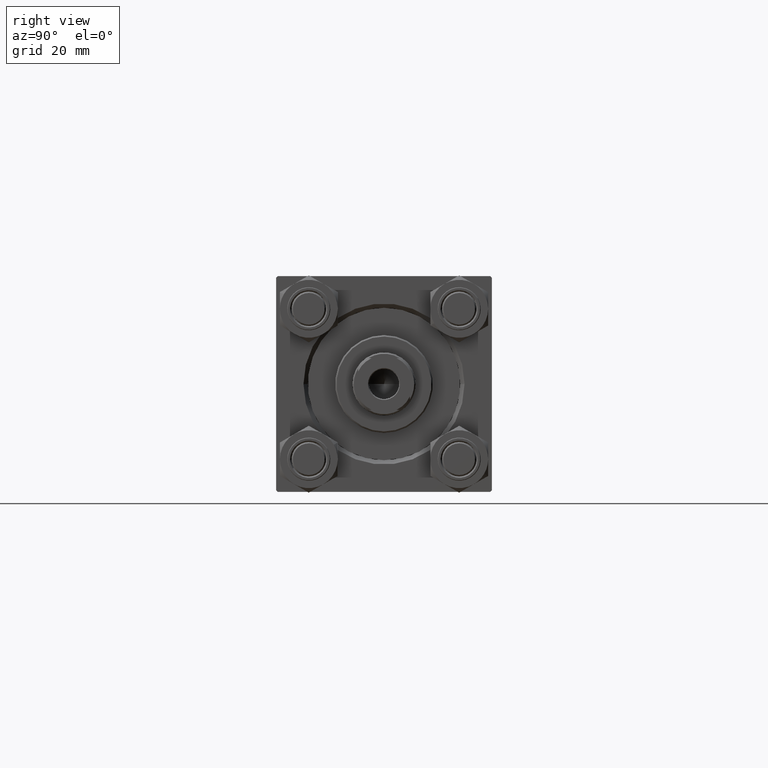
[diagram: clean part render]
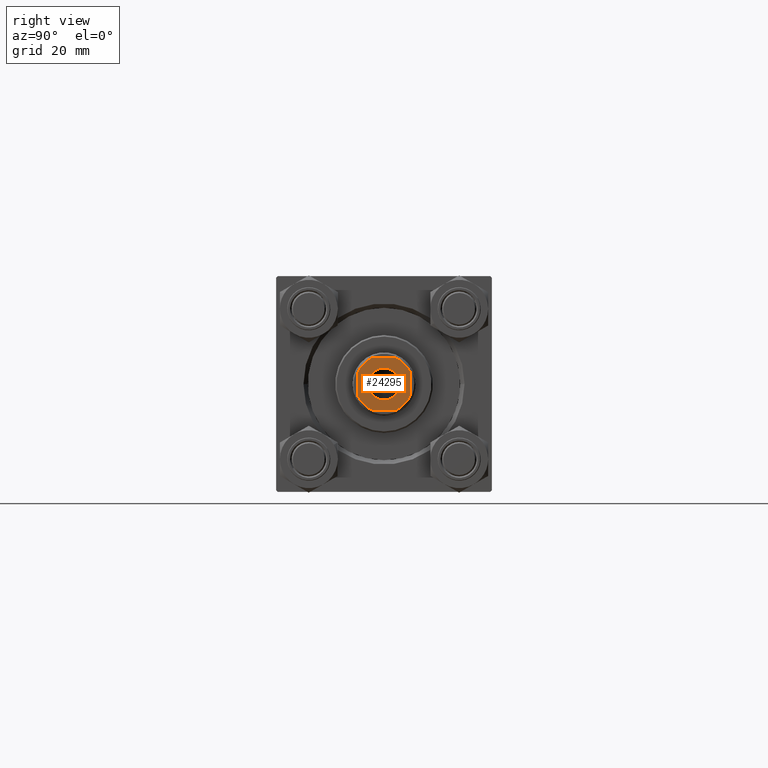
[diagram: same view with one face highlighted and labeled with its STEP entity id]
A machine part, right view. The second image highlights one B-rep face of the part: STEP entity #24295.
In plain terms, the highlighted planar face has unit normal (1, 0, -0).
Its self-contained STEP definition (entity closure, byte-faithful):
#408 = ORIENTED_EDGE ( 'NONE', *, *, #6819, .T. ) ;
#690 = CARTESIAN_POINT ( 'NONE',  ( 0.000000000000000000, 0.000000000000000000, 142.0000000000000284 ) ) ;
#1327 = VERTEX_POINT ( 'NONE', #9109 ) ;
#1738 = CARTESIAN_POINT ( 'NONE',  ( 0.000000000000000000, 0.000000000000000000, 142.0000000000000284 ) ) ;
#2940 = DIRECTION ( 'NONE',  ( 1.000000000000000000, 0.000000000000000000, 0.000000000000000000 ) ) ;
#3325 = CARTESIAN_POINT ( 'NONE',  ( 8.999999999999998224, 4.358898943540736148, 142.0000000000000284 ) ) ;
#3636 = DIRECTION ( 'NONE',  ( 1.000000000000000000, 0.000000000000000000, 0.000000000000000000 ) ) ;
#3688 = CIRCLE ( 'NONE', #27448, 5.549999999999998934 ) ;
#3845 = VERTEX_POINT ( 'NONE', #39985 ) ;
#3862 = CARTESIAN_POINT ( 'NONE',  ( 0.000000000000000000, 0.000000000000000000, 142.0000000000000284 ) ) ;
#4201 = CARTESIAN_POINT ( 'NONE',  ( 8.999999999999998224, -4.358898943540842730, 142.0000000000000284 ) ) ;
#4564 = DIRECTION ( 'NONE',  ( -0.000000000000000000, 0.000000000000000000, 1.000000000000000000 ) ) ;
#4569 = ORIENTED_EDGE ( 'NONE', *, *, #33529, .T. ) ;
#4679 = EDGE_CURVE ( 'NONE', #39276, #10794, #16851, .T. ) ;
#4861 = CIRCLE ( 'NONE', #15952, 5.549999999999998934 ) ;
#5473 = FACE_BOUND ( 'NONE', #5541, .T. ) ;
#5541 = EDGE_LOOP ( 'NONE', ( #36188, #26375 ) ) ;
#6819 = EDGE_CURVE ( 'NONE', #3845, #1327, #20399, .T. ) ;
#7378 = VECTOR ( 'NONE', #26058, 1000.000000000000000 ) ;
#7544 = ORIENTED_EDGE ( 'NONE', *, *, #4679, .T. ) ;
#7769 = VERTEX_POINT ( 'NONE', #4201 ) ;
#8775 = AXIS2_PLACEMENT_3D ( 'NONE', #20189, #13185, #27398 ) ;
#9109 = CARTESIAN_POINT ( 'NONE',  ( -9.000000000000003553, -4.358898943540610915, 142.0000000000000284 ) ) ;
#9161 = ORIENTED_EDGE ( 'NONE', *, *, #11498, .T. ) ;
#9249 = CARTESIAN_POINT ( 'NONE',  ( 4.358898943540838289, -9.000000000000001776, 142.0000000000000284 ) ) ;
#10166 = EDGE_CURVE ( 'NONE', #1327, #43906, #20630, .T. ) ;
#10483 = DIRECTION ( 'NONE',  ( 0.000000000000000000, -0.000000000000000000, -1.000000000000000000 ) ) ;
#10595 = CARTESIAN_POINT ( 'NONE',  ( 5.549999999999998934, 0.000000000000000000, 142.0000000000000284 ) ) ;
#10794 = VERTEX_POINT ( 'NONE', #16411 ) ;
#11387 = EDGE_CURVE ( 'NONE', #29930, #3845, #13969, .T. ) ;
#11498 = EDGE_CURVE ( 'NONE', #43906, #25378, #31334, .T. ) ;
#13125 = DIRECTION ( 'NONE',  ( 1.000000000000000000, 0.000000000000000000, 0.000000000000000000 ) ) ;
#13185 = DIRECTION ( 'NONE',  ( -0.000000000000000000, 0.000000000000000000, 1.000000000000000000 ) ) ;
#13852 = EDGE_CURVE ( 'NONE', #10794, #29930, #40464, .T. ) ;
#13969 = CIRCLE ( 'NONE', #8775, 10.00000000000007105 ) ;
#14303 = VERTEX_POINT ( 'NONE', #10595 ) ;
#14497 = EDGE_CURVE ( 'NONE', #29868, #14303, #3688, .T. ) ;
#15032 = AXIS2_PLACEMENT_3D ( 'NONE', #1738, #24061, #13125 ) ;
#15110 = DIRECTION ( 'NONE',  ( 1.000000000000000000, 0.000000000000000000, 0.000000000000000000 ) ) ;
#15457 = VECTOR ( 'NONE', #31326, 1000.000000000000000 ) ;
#15952 = AXIS2_PLACEMENT_3D ( 'NONE', #25159, #43518, #35863 ) ;
#16411 = CARTESIAN_POINT ( 'NONE',  ( 4.358898943540733484, 8.999999999999998224, 142.0000000000000284 ) ) ;
#16851 = CIRCLE ( 'NONE', #27291, 10.00000000000002487 ) ;
#19982 = VECTOR ( 'NONE', #33064, 1000.000000000000000 ) ;
#20189 = CARTESIAN_POINT ( 'NONE',  ( 0.000000000000000000, 0.000000000000000000, 142.0000000000000284 ) ) ;
#20399 = LINE ( 'NONE', #28302, #15457 ) ;
#20630 = CIRCLE ( 'NONE', #22866, 9.999999999999973355 ) ;
#21002 = ORIENTED_EDGE ( 'NONE', *, *, #13852, .T. ) ;
#22866 = AXIS2_PLACEMENT_3D ( 'NONE', #44429, #26763, #26986 ) ;
#23614 = FACE_OUTER_BOUND ( 'NONE', #43447, .T. ) ;
#24061 = DIRECTION ( 'NONE',  ( -0.000000000000000000, 0.000000000000000000, 1.000000000000000000 ) ) ;
#24141 = ORIENTED_EDGE ( 'NONE', *, *, #10166, .T. ) ;
#24295 = ADVANCED_FACE ( 'NONE', ( #5473, #23614 ), #37809, .T. ) ;
#24678 = DIRECTION ( 'NONE',  ( 1.000000000000000000, 0.000000000000000000, 0.000000000000000000 ) ) ;
#24810 = CARTESIAN_POINT ( 'NONE',  ( -9.000000000000001776, -9.000000000000001776, 142.0000000000000284 ) ) ;
#24906 = CARTESIAN_POINT ( 'NONE',  ( 0.000000000000000000, 0.000000000000000000, 142.0000000000000284 ) ) ;
#24988 = CARTESIAN_POINT ( 'NONE',  ( -4.358898943540612692, -9.000000000000001776, 142.0000000000000284 ) ) ;
#25159 = CARTESIAN_POINT ( 'NONE',  ( 0.000000000000000000, 0.000000000000000000, 142.0000000000000284 ) ) ;
#25378 = VERTEX_POINT ( 'NONE', #9249 ) ;
#26058 = DIRECTION ( 'NONE',  ( -1.000000000000000000, -0.000000000000000000, -0.000000000000000000 ) ) ;
#26357 = AXIS2_PLACEMENT_3D ( 'NONE', #3862, #4564, #3636 ) ;
#26375 = ORIENTED_EDGE ( 'NONE', *, *, #14497, .T. ) ;
#26763 = DIRECTION ( 'NONE',  ( -0.000000000000000000, 0.000000000000000000, 1.000000000000000000 ) ) ;
#26986 = DIRECTION ( 'NONE',  ( 1.000000000000000000, 0.000000000000000000, 0.000000000000000000 ) ) ;
#27291 = AXIS2_PLACEMENT_3D ( 'NONE', #690, #29089, #15110 ) ;
#27398 = DIRECTION ( 'NONE',  ( 1.000000000000000000, 0.000000000000000000, 0.000000000000000000 ) ) ;
#27448 = AXIS2_PLACEMENT_3D ( 'NONE', #24906, #10483, #24678 ) ;
#28302 = CARTESIAN_POINT ( 'NONE',  ( -9.000000000000003553, 8.999999999999998224, 142.0000000000000284 ) ) ;
#29089 = DIRECTION ( 'NONE',  ( -0.000000000000000000, 0.000000000000000000, 1.000000000000000000 ) ) ;
#29126 = LINE ( 'NONE', #33291, #19982 ) ;
#29545 = CARTESIAN_POINT ( 'NONE',  ( -9.000000000000003553, 8.999999999999998224, 142.0000000000000284 ) ) ;
#29868 = VERTEX_POINT ( 'NONE', #30843 ) ;
#29930 = VERTEX_POINT ( 'NONE', #37022 ) ;
#30843 = CARTESIAN_POINT ( 'NONE',  ( -5.549999999999998934, 6.796789735267809794E-16, 142.0000000000000284 ) ) ;
#31258 = ORIENTED_EDGE ( 'NONE', *, *, #43386, .T. ) ;
#31326 = DIRECTION ( 'NONE',  ( 9.637352644315595243E-17, -1.000000000000000000, 0.000000000000000000 ) ) ;
#31334 = LINE ( 'NONE', #24810, #33333 ) ;
#32733 = EDGE_CURVE ( 'NONE', #14303, #29868, #4861, .T. ) ;
#33064 = DIRECTION ( 'NONE',  ( -1.927470528863119049E-16, 1.000000000000000000, -0.000000000000000000 ) ) ;
#33291 = CARTESIAN_POINT ( 'NONE',  ( 8.999999999999996447, 8.999999999999998224, 142.0000000000000284 ) ) ;
#33333 = VECTOR ( 'NONE', #2940, 1000.000000000000000 ) ;
#33529 = EDGE_CURVE ( 'NONE', #25378, #7769, #34526, .T. ) ;
#34526 = CIRCLE ( 'NONE', #26357, 10.00000000000007283 ) ;
#35863 = DIRECTION ( 'NONE',  ( 1.000000000000000000, 0.000000000000000000, 0.000000000000000000 ) ) ;
#36188 = ORIENTED_EDGE ( 'NONE', *, *, #32733, .T. ) ;
#37022 = CARTESIAN_POINT ( 'NONE',  ( -4.358898943540841842, 8.999999999999998224, 142.0000000000000284 ) ) ;
#37809 = PLANE ( 'NONE',  #15032 ) ;
#39276 = VERTEX_POINT ( 'NONE', #3325 ) ;
#39985 = CARTESIAN_POINT ( 'NONE',  ( -9.000000000000003553, 4.358898943540833848, 142.0000000000000284 ) ) ;
#40464 = LINE ( 'NONE', #29545, #7378 ) ;
#41446 = ORIENTED_EDGE ( 'NONE', *, *, #11387, .T. ) ;
#43386 = EDGE_CURVE ( 'NONE', #7769, #39276, #29126, .T. ) ;
#43447 = EDGE_LOOP ( 'NONE', ( #31258, #7544, #21002, #41446, #408, #24141, #9161, #4569 ) ) ;
#43518 = DIRECTION ( 'NONE',  ( 0.000000000000000000, -0.000000000000000000, -1.000000000000000000 ) ) ;
#43906 = VERTEX_POINT ( 'NONE', #24988 ) ;
#44429 = CARTESIAN_POINT ( 'NONE',  ( 0.000000000000000000, 0.000000000000000000, 142.0000000000000284 ) ) ;